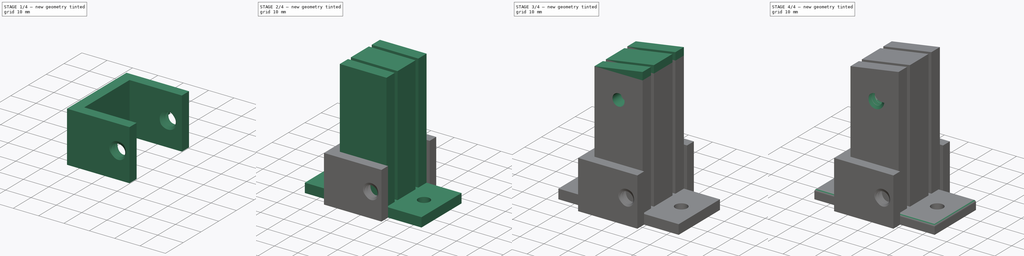
[diagram: build sequence overview — one tinted view per stage of 4, left to right]
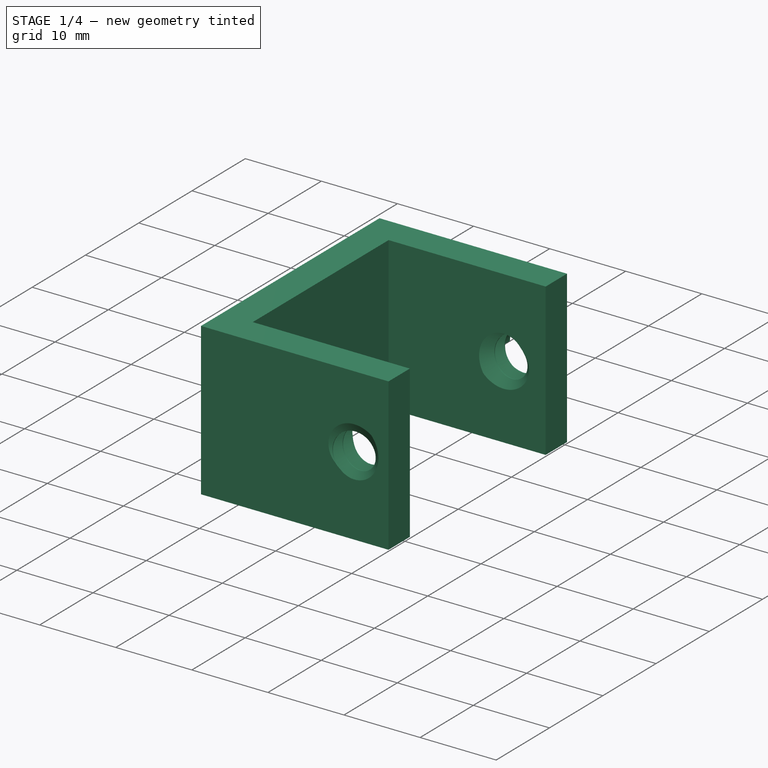
[diagram: stage 1 of 4 — iso view after this stage's code; geometry added in this stage tinted green]
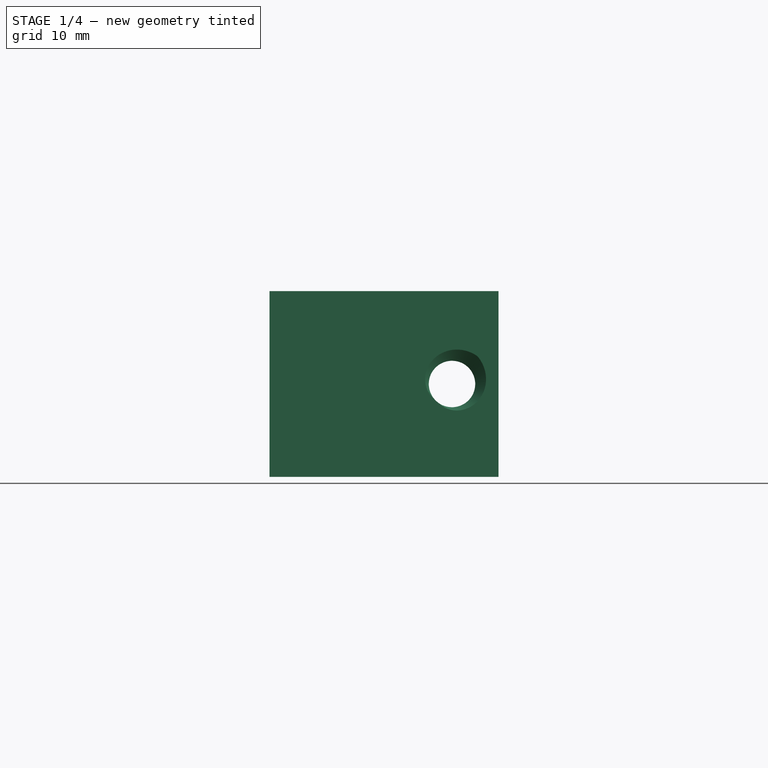
[diagram: stage 1 of 4 — front view after this stage's code; geometry added in this stage tinted green]
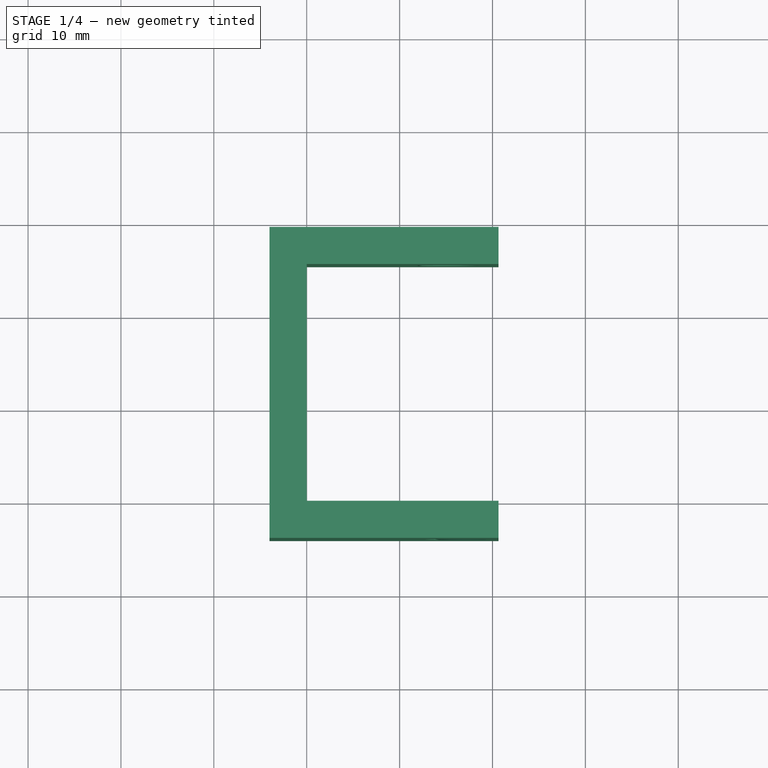
[diagram: stage 1 of 4 — top view after this stage's code; geometry added in this stage tinted green]
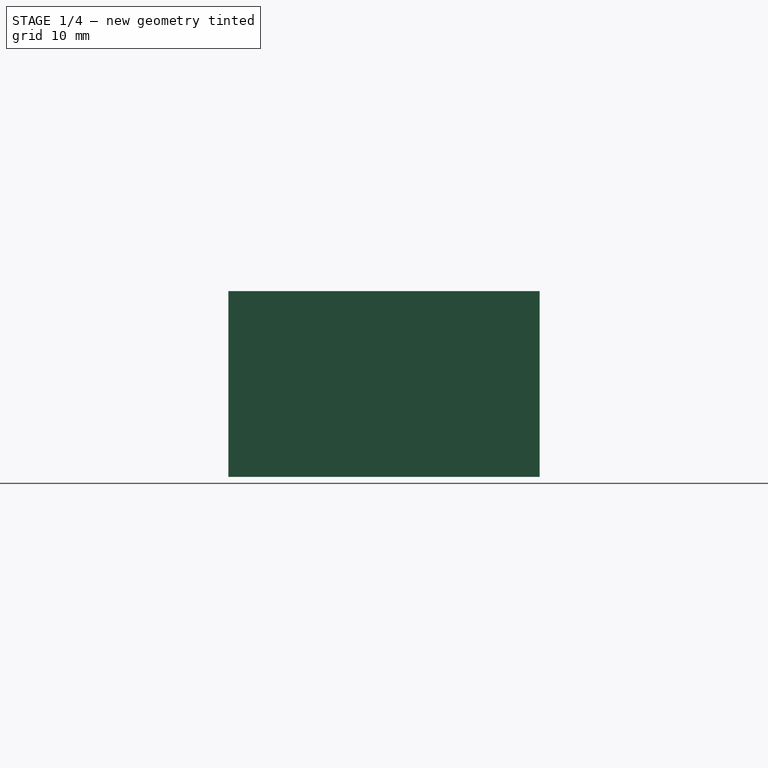
[diagram: stage 1 of 4 — right view after this stage's code; geometry added in this stage tinted green]
FCSTD DOCUMENT  (FreeCAD 0.20R29177 (Git))
Label: WashingRoomSupport
License: All rights reserved
LicenseURL: http://en.wikipedia.org/wiki/All_rights_reserved
objects: Sketcher::SketchObject×12, PartDesign::Pad×5, PartDesign::Pocket×4, PartDesign::SubtractiveHelix×3, PartDesign::Body×2, Spreadsheet::Sheet×1, PartDesign::Fillet×1
note: 40 computed .brp shape members not serialized (recipe doc carries the construction recipe); baked Part::Feature solids carry a one-line shape summary decoded from their .brp

FEATURE [PartDesign::Body] Body
  Group = -> [Sketch,Pad,Sketch001,Pad001,Sketch002,Pad002,Sketch003,Pad003,Sketch004,Pocket,Sketch005,Pocket001,Sketch006,Pocket002,SketchTemp_Sketch005_Edge1,SubtractiveHelix,SketchTemp_Sketch006_Edge1,SubtractiveHelix001,Fillet]
  Origin = -> Origin
  Tip = -> Fillet
FEATURE [Sketcher::SketchObject] Sketch007
  FullyConstrained = true
  MapMode = 5
  Support = -> [XY_Plane001]
  expr: Constraints[10] = Spreadsheet.EndCapHeight
  expr: Constraints[16] = Spreadsheet.wallThickness
  expr: Constraints[20] = Spreadsheet.wallThickness
  expr: Constraints[21] = Spreadsheet.wallThickness
  expr: Constraints[22] = Spreadsheet.totalPad + Spreadsheet.CapSpacingPad
  sketch-geometry (8):
    g0: LineSegment StartX=0 StartY=0 StartZ=0 EndX=0 EndY=25.5 EndZ=0
    g1: LineSegment StartX=0 StartY=25.5 StartZ=0 EndX=20.6421 EndY=25.5 EndZ=0
    g2: LineSegment StartX=20.6421 StartY=25.5 StartZ=0 EndX=20.6421 EndY=29.5 EndZ=0
    g3: LineSegment StartX=20.6421 StartY=29.5 StartZ=0 EndX=-4 EndY=29.5 EndZ=0
    g4: LineSegment StartX=-4 StartY=29.5 StartZ=0 EndX=-4 EndY=-4 EndZ=0
    g5: LineSegment StartX=0 StartY=0 StartZ=0 EndX=20.6421 EndY=0 EndZ=0
    g6: LineSegment StartX=20.6421 StartY=0 StartZ=0 EndX=20.6421 EndY=-4 EndZ=0
    g7: LineSegment StartX=-4 StartY=-4 StartZ=0 EndX=20.6421 EndY=-4 EndZ=0
  constraints (23):
    c: Coincident(g0,g-1)
    c: PointOnObject(g0,g-2)
    c: Coincident(g1,g0)
    c: Horizontal(g1)
    c: Coincident(g2,g1)
    c: Vertical(g2)
    c: Coincident(g3,g2)
    c: Horizontal(g3)
    c: Coincident(g4,g3)
    c: Vertical(g4)
    c: DistanceX(g1,g1) = 20.6421
    c: Coincident(g5,g0)
    c: PointOnObject(g5,g-1)
    c: Coincident(g6,g5)
    c: Vertical(g6)
    c: Equal(g1,g5)
    c: DistanceX(g3,g0) = 4
    c: Coincident(g7,g4)
    c: Coincident(g7,g6)
    c: Horizontal(g7)
    c: DistanceY(g4,g0) = 4
    c: DistanceY(g0,g3) = 4
    c: DistanceY(g0,g0) = 25.5
FEATURE [PartDesign::Pad] Pad004
  Direction = (0,0,1)
  Length = 20
  Length2 = 10
  Profile = -> Sketch007
  ReferenceAxis = -> Sketch007 [N_Axis]
  Type = 0
  expr: Length = Spreadsheet.length
FEATURE [Sketcher::SketchObject] Sketch008
  FullyConstrained = false
  MapMode = 5
  Placement = pos=(0,29.5,0) rot=(0,0.707107,0.707107;3.14159rad)
  Support = -> [Pad004]
  expr: Constraints[1] = Spreadsheet.length / 2
  expr: Constraints[3] = Spreadsheet.EndCapScrewToBottomDist
  expr: Constraints[4] = Spreadsheet.screwR
  sketch-geometry (2):
    g0: LineSegment StartX=-31.7206 StartY=10 StartZ=0 EndX=14.1242 EndY=10 EndZ=0
    g1: Circle CenterX=-15.6421 CenterY=10 CenterZ=0 NormalX=0 NormalY=0 NormalZ=1 AngleXU=0 Radius=2.5
  constraints (5):
    c: Horizontal(g0)
    c: DistanceY(g-1,g0) = 10
    c: PointOnObject(g1,g0)
    c: DistanceX(g1,g-1) = 15.6421
    c: Radius(g1) = 2.5
FEATURE [PartDesign::Pocket] Pocket003
  BaseFeature = -> Pad004
  Direction = (0,-1,2e-16)
  Length = 5
  Length2 = 5
  Profile = -> Sketch008
  ReferenceAxis = -> Sketch008 [N_Axis]
  Type = 1
FEATURE [Sketcher::SketchObject] SketchTemp_Sketch008_Edge1
  AttachmentOffset = pos=(-15.6421,10,0) rot=(1,0,0;1.5708rad)
  FullyConstrained = true
  MapMode = 5
  Placement = pos=(15.6421,29.5,10) rot=(0,1,0;3.14159rad)
  Support = -> [Pad004]
  sketch-geometry (3):
    g0: LineSegment StartX=2.5 StartY=0.9 StartZ=0 EndX=4.05885 EndY=0 EndZ=0
    g1: LineSegment StartX=4.05885 StartY=0 StartZ=0 EndX=2.5 EndY=-0.9 EndZ=0
    g2: LineSegment StartX=2.5 StartY=-0.9 StartZ=0 EndX=2.5 EndY=0.9 EndZ=0
  constraints (9):
    c: Equal(g2,g0)
    c: Equal(g2,g1)
    c: Distance(g2) = 1.8
    c: Coincident(g0,g1)
    c: Coincident(g1,g2)
    c: Coincident(g2,g0)
    c: Parallel(g2,g-2)
    c: PointOnObject(g0,g-1)
    c: DistanceX(g-1,g0) = 2.5
FEATURE [PartDesign::SubtractiveHelix] SubtractiveHelix002
  Angle = 0
  Axis = (0,1,-2e-16)
  Base = (15.6421,29.5,10)
  BaseFeature = -> Pocket003
  Growth = 0
  HasBeenEdited = false
  Height = 35
  LeftHanded = false
  Mode = 0
  Outside = false
  Pitch = 1.9
  Profile = -> SketchTemp_Sketch008_Edge1
  ReferenceAxis = -> SketchTemp_Sketch008_Edge1 [V_Axis]
  Reversed = true
  Turns = 18.4211
FEATURE [PartDesign::Body] Body001  label="Body001EndCap"
  Group = -> [Sketch007,Pad004,Sketch008,Pocket003,SketchTemp_Sketch008_Edge1,SubtractiveHelix002]
  Origin = -> Origin001
  Tip = -> SubtractiveHelix002
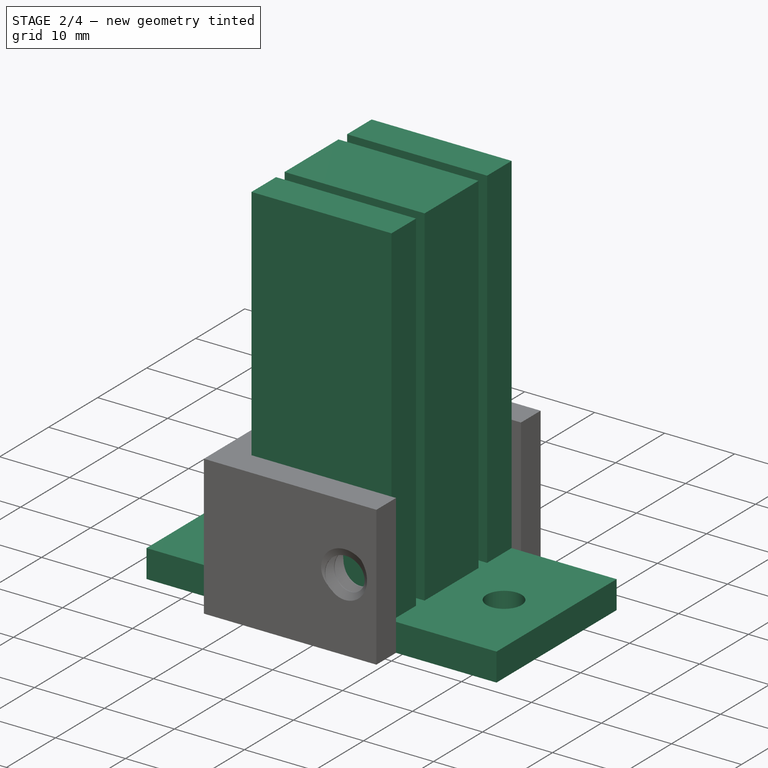
[diagram: stage 2 of 4 — iso view after this stage's code; geometry added in this stage tinted green]
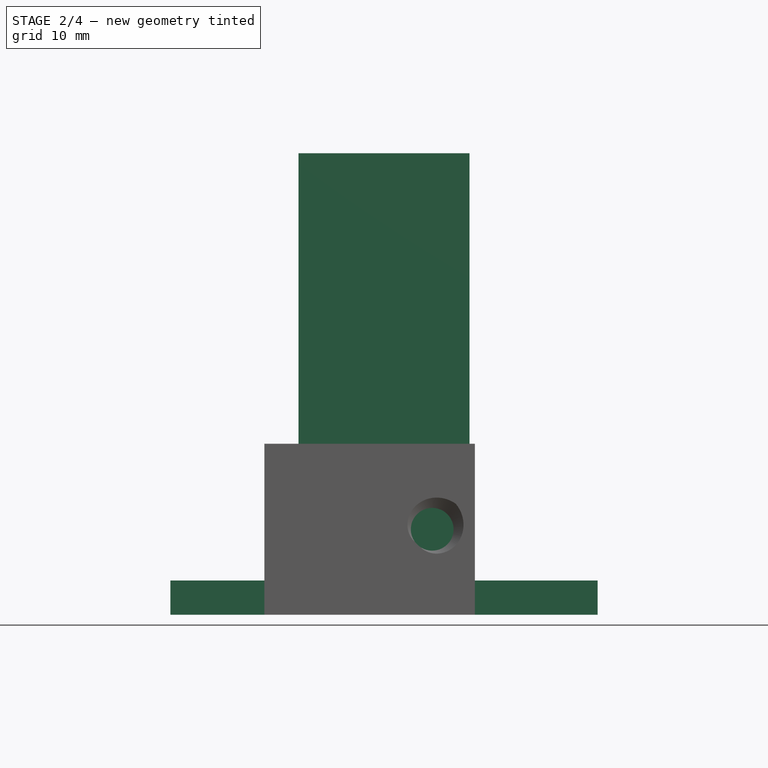
[diagram: stage 2 of 4 — front view after this stage's code; geometry added in this stage tinted green]
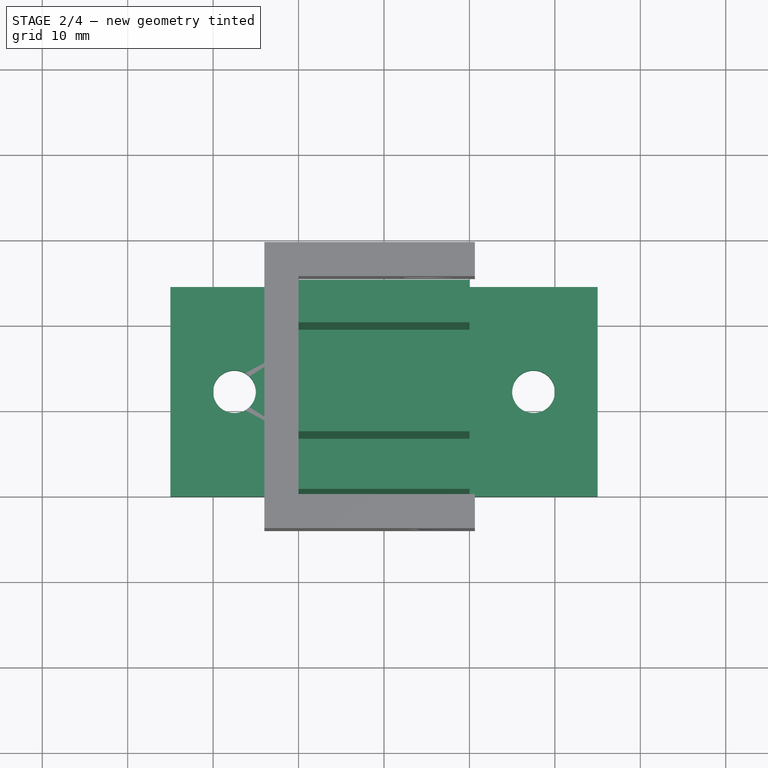
[diagram: stage 2 of 4 — top view after this stage's code; geometry added in this stage tinted green]
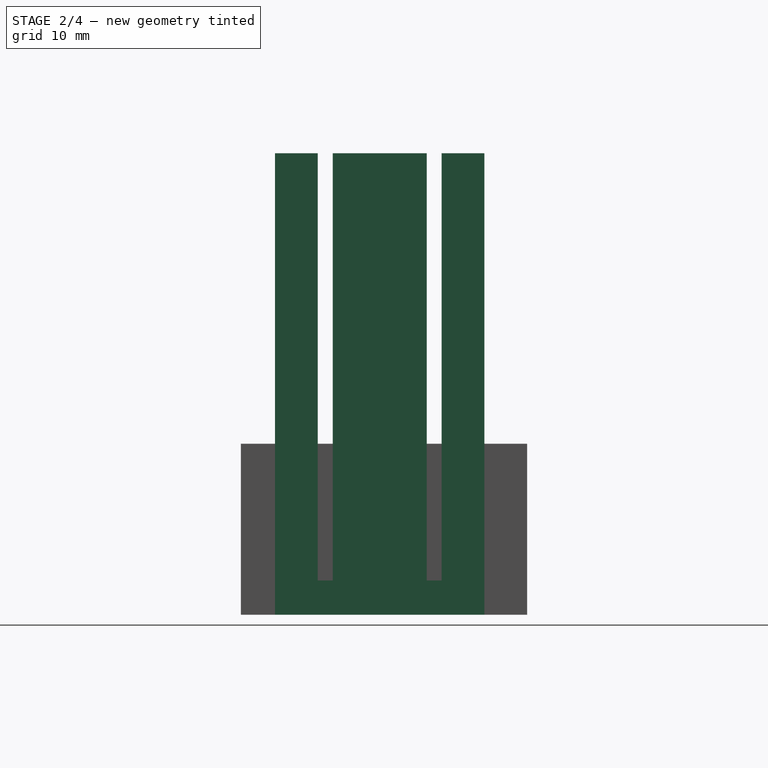
[diagram: stage 2 of 4 — right view after this stage's code; geometry added in this stage tinted green]
FEATURE [Sketcher::SketchObject] Sketch
  FullyConstrained = true
  MapMode = 5
  Support = -> [XY_Plane]
  expr: Constraints[10] = Spreadsheet.length
  expr: Constraints[9] = Spreadsheet.totalPad
  sketch-geometry (4):
    g0: LineSegment StartX=0 StartY=0 StartZ=0 EndX=20 EndY=0 EndZ=0
    g1: LineSegment StartX=20 StartY=0 StartZ=0 EndX=20 EndY=24.5 EndZ=0
    g2: LineSegment StartX=20 StartY=24.5 StartZ=0 EndX=0 EndY=24.5 EndZ=0
    g3: LineSegment StartX=0 StartY=24.5 StartZ=0 EndX=0 EndY=0 EndZ=0
  constraints (11):
    c: Coincident(g0,g1)
    c: Coincident(g1,g2)
    c: Coincident(g2,g3)
    c: Coincident(g3,g0)
    c: Horizontal(g0)
    c: Horizontal(g2)
    c: Vertical(g1)
    c: Vertical(g3)
    c: Coincident(g0,g-1)
    c: DistanceY(g1,g1) = 24.5
    c: DistanceX(g2,g2) = 20
FEATURE [PartDesign::Pad] Pad
  Direction = (0,0,1)
  Length = 4
  Length2 = 10
  Profile = -> Sketch
  ReferenceAxis = -> Sketch [N_Axis]
  Type = 0
  expr: Length = Spreadsheet.screwPadThickness
FEATURE [Sketcher::SketchObject] Sketch001
  ExternalGeometry = -> [Pad]
  FullyConstrained = true
  MapMode = 5
  Support = -> [XY_Plane]
  expr: Constraints[30] = Spreadsheet.outerPad
  expr: Constraints[31] = Spreadsheet.passSpacing
  expr: Constraints[32] = Spreadsheet.inner
  expr: Constraints[33] = Spreadsheet.passSpacing
  sketch-geometry (12):
    g0: LineSegment StartX=0 StartY=17.75 StartZ=0 EndX=20 EndY=17.75 EndZ=0
    g1: LineSegment StartX=20 StartY=17.75 StartZ=0 EndX=20 EndY=6.75 EndZ=0
    g2: LineSegment StartX=20 StartY=6.75 StartZ=0 EndX=0 EndY=6.75 EndZ=0
    g3: LineSegment StartX=0 StartY=6.75 StartZ=0 EndX=0 EndY=17.75 EndZ=0
    g4: LineSegment StartX=0 StartY=24.5 StartZ=0 EndX=20 EndY=24.5 EndZ=0
    g5: LineSegment StartX=20 StartY=24.5 StartZ=0 EndX=20 EndY=19.5 EndZ=0
    g6: LineSegment StartX=20 StartY=19.5 StartZ=0 EndX=0 EndY=19.5 EndZ=0
    g7: LineSegment StartX=0 StartY=19.5 StartZ=0 EndX=0 EndY=24.5 EndZ=0
    g8: LineSegment StartX=0 StartY=0 StartZ=0 EndX=20 EndY=0 EndZ=0
    g9: LineSegment StartX=20 StartY=0 StartZ=0 EndX=20 EndY=5 EndZ=0
    g10: LineSegment StartX=20 StartY=5 StartZ=0 EndX=0 EndY=5 EndZ=0
    g11: LineSegment StartX=0 StartY=5 StartZ=0 EndX=0 EndY=0 EndZ=0
  constraints (34):
    c: Coincident(g0,g1)
    c: Coincident(g1,g2)
    c: Coincident(g2,g3)
    c: Coincident(g3,g0)
    c: Horizontal(g0)
    c: Horizontal(g2)
    c: Vertical(g1)
    c: Vertical(g3)
    c: PointOnObject(g0,g-4)
    c: PointOnObject(g1,g-5)
    c: Coincident(g4,g5)
    c: Coincident(g5,g6)
    c: Coincident(g6,g7)
    c: Coincident(g7,g4)
    c: Horizontal(g4)
    c: Horizontal(g6)
    c: Vertical(g5)
    c: Vertical(g7)
    c: Coincident(g4,g-4)
    c: PointOnObject(g5,g-5)
    c: Coincident(g8,g9)
    c: Coincident(g9,g10)
    c: Coincident(g10,g11)
    c: Coincident(g11,g8)
    c: Horizontal(g8)
    c: Horizontal(g10)
    c: Vertical(g9)
    c: Vertical(g11)
    c: Coincident(g8,g-4)
    c: PointOnObject(g9,g-5)
    c: DistanceY(g11,g11) = 5
    c: DistanceY(g10,g2) = 1.75
    c: DistanceY(g3,g3) = 11
    c: DistanceY(g0,g6) = 1.75
FEATURE [Spreadsheet::Sheet] Spreadsheet
  cells = A2=inner; B2(inner)=11; A3=outer; B3(outer)=14.5; A4=length; B4(length)=20; A5=outerPad; B5(outerPad)=5; A6=padHeight; B6(padHeight)=50; A7=screwR; B7(screwR)=2.5; A8=screwPadThickness; B8(screwPadThickness)=4; A9=outerPadWithScrew; B9(outerPadWithScrew)=5; A10=totalPad; B10(totalPad)==B3 + B5 + B9; C10=B3 + B5 + B9, outer+outerPad_outerPadWithScrew; A11=passSpacing; B11(passSpacing)==(B3 - B2) / 2; A12=fasteningScrewY; B12(fasteningScrewY)==B6 - B16; C12=B6-B16, padHeight- fastenScrewToTopDist; A13=screwSupportWidth; B13(screwSupportWidth)=15; A14=screwHelixPos; B14(screwHelixPos)==B12 + B8; C14=B12 + B8, screwPadThicknews+fastenScrewY; A15=threadedScrewHoleR; B15(threadedScrewHoleR)=2.5; A16=fastenScrewToTopDist; B16(fastenScrewToTopDist)=10; A18=EndCapScrewToBottomDistNoPad; B18==sqrt(B16 * B16 + B4 * B4 / 4); C18=sqrt((length/2)^2+fastenScrewTopTopDist^2); A19=EndCapScrewPad; B19=1.5; A20=EndCapScrewToBottomDist; B20(EndCapScrewToBottomDist)==B18 + B19; A21=EndCapHeight; B21(EndCapHeight)==B20 + 5; A22=wallThickness; B22(wallThickness)=4; C22=set to 2 for now; A23=CapSpacingPad; B23(CapSpacingPad)=1; D23=makeScrewHole('Sketch008.Edge2', 'Body001')
FEATURE [PartDesign::Pad] Pad001
  BaseFeature = -> Pad
  Direction = (0,0,1)
  Length = 54
  Length2 = 10
  Profile = -> Sketch001
  ReferenceAxis = -> Sketch001 [N_Axis]
  Type = 0
  expr: Length = Spreadsheet.padHeight + 4
FEATURE [Sketcher::SketchObject] Sketch002
  FullyConstrained = false
  MapMode = 5
  Support = -> [XY_Plane]
  expr: Constraints[10] = Spreadsheet.length
  expr: Constraints[11] = Spreadsheet.screwSupportWidth
  expr: Constraints[34] = Spreadsheet.screwR
  expr: Constraints[9] = Spreadsheet.totalPad
  sketch-geometry (13):
    g0: LineSegment StartX=20 StartY=0 StartZ=0 EndX=35 EndY=0 EndZ=0
    g1: LineSegment StartX=35 StartY=0 StartZ=0 EndX=35 EndY=24.5 EndZ=0
    g2: LineSegment StartX=35 StartY=24.5 StartZ=0 EndX=20 EndY=24.5 EndZ=0
    g3: LineSegment StartX=20 StartY=24.5 StartZ=0 EndX=20 EndY=0 EndZ=0
    g4: LineSegment StartX=0 StartY=0 StartZ=0 EndX=-15 EndY=0 EndZ=0
    g5: LineSegment StartX=-15 StartY=0 StartZ=0 EndX=-15 EndY=24.5 EndZ=0
    g6: LineSegment StartX=-15 StartY=24.5 StartZ=0 EndX=0 EndY=24.5 EndZ=0
    g7: LineSegment StartX=0 StartY=24.5 StartZ=0 EndX=0 EndY=0 EndZ=0
    g8: Circle CenterX=-7.5 CenterY=12.25 CenterZ=0 NormalX=0 NormalY=0 NormalZ=1 AngleXU=0 Radius=2.5
    g9: Circle CenterX=27.5 CenterY=12.25 CenterZ=0 NormalX=0 NormalY=0 NormalZ=1 AngleXU=0 Radius=2.5
    g10: LineSegment StartX=27.5 StartY=24.5 StartZ=0 EndX=27.5 EndY=-2.08774 EndZ=0
    g11: LineSegment StartX=-7.5 StartY=24.5 StartZ=0 EndX=-7.5 EndY=-2.99237 EndZ=0
    g12: LineSegment StartX=-14.9256 StartY=12.25 StartZ=0 EndX=35 EndY=12.25 EndZ=0
  constraints (35):
    c: Coincident(g0,g1)
    c: Coincident(g1,g2)
    c: Coincident(g2,g3)
    c: Coincident(g3,g0)
    c: Horizontal(g0)
    c: Horizontal(g2)
    c: Vertical(g1)
    c: Vertical(g3)
    c: PointOnObject(g0,g-1)
    c: DistanceY(g1,g1) = 24.5
    c: DistanceX(g-1,g2) = 20
    c: DistanceX(g2,g2) = 15
    c: Coincident(g4,g5)
    c: Coincident(g5,g6)
    c: Coincident(g6,g7)
    c: Coincident(g7,g4)
    c: Horizontal(g4)
    c: Horizontal(g6)
    c: Vertical(g5)
    c: Vertical(g7)
    c: Coincident(g4,g-1)
    c: Equal(g1,g5)
    c: Equal(g6,g2)
    c: Vertical(g10)
    c: Vertical(g11)
    c: Horizontal(g12)
    c: Symmetric(g1,g0,g12)
    c: Symmetric(g1,g2,g10)
    c: Symmetric(g5,g6,g11)
    c: PointOnObject(g9,g12)
    c: PointOnObject(g9,g10)
    c: PointOnObject(g8,g12)
    c: PointOnObject(g8,g11)
    c: Equal(g8,g9)
    c: Radius(g8) = 2.5
FEATURE [PartDesign::Pad] Pad002
  BaseFeature = -> Pad001
  Direction = (0,0,1)
  Length = 4
  Length2 = 10
  Profile = -> Sketch002
  ReferenceAxis = -> Sketch002 [N_Axis]
  Type = 0
  expr: Length = Spreadsheet.screwPadThickness
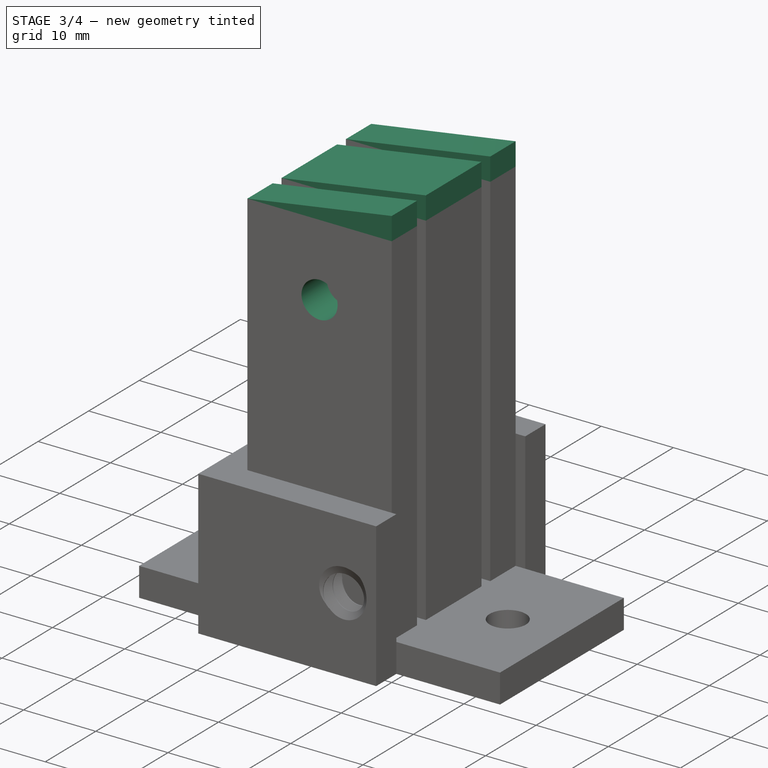
[diagram: stage 3 of 4 — iso view after this stage's code; geometry added in this stage tinted green]
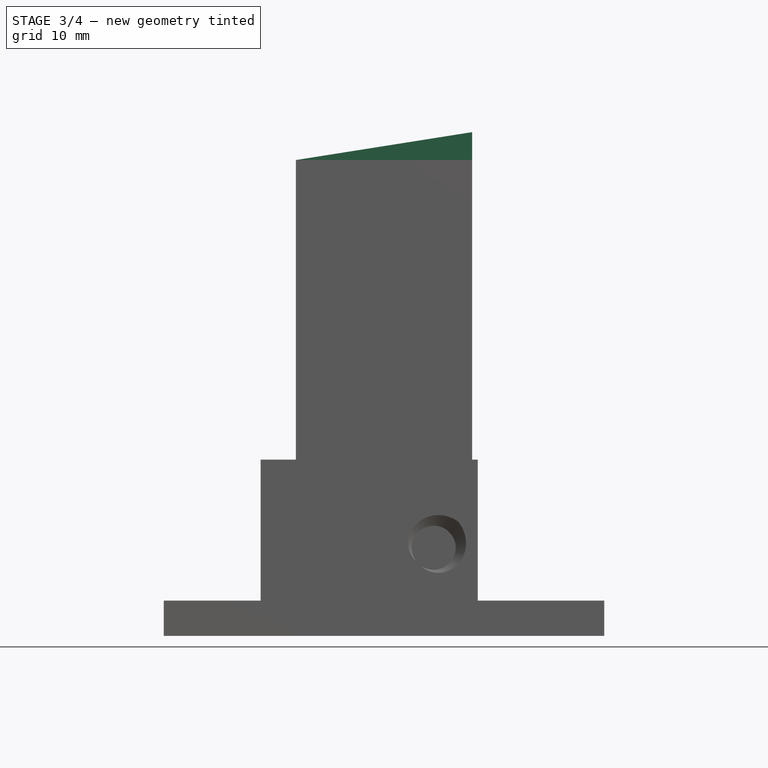
[diagram: stage 3 of 4 — front view after this stage's code; geometry added in this stage tinted green]
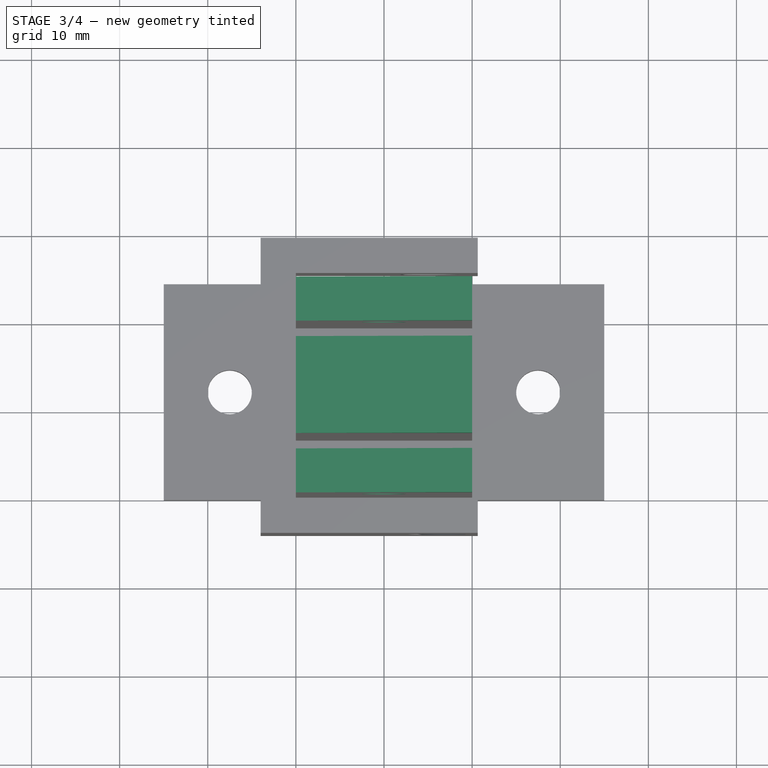
[diagram: stage 3 of 4 — top view after this stage's code; geometry added in this stage tinted green]
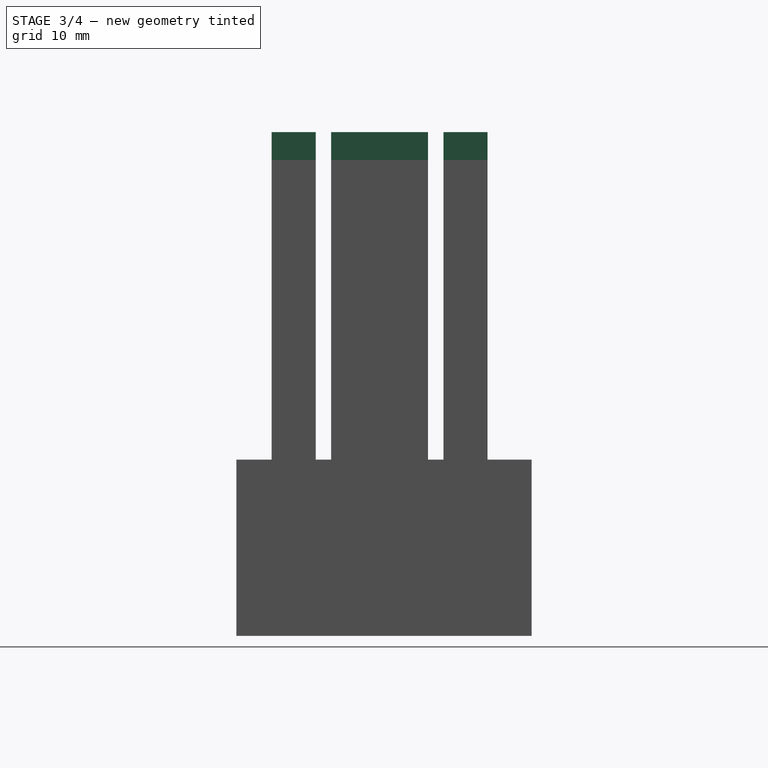
[diagram: stage 3 of 4 — right view after this stage's code; geometry added in this stage tinted green]
FEATURE [Sketcher::SketchObject] Sketch003
  ExternalGeometry = -> [Pad002]
  FullyConstrained = true
  MapMode = 5
  Placement = pos=(0,0,0) rot=(1,0,0;1.5708rad)
  Support = -> [XZ_Plane]
  sketch-geometry (3):
    g0: LineSegment StartX=0 StartY=54 StartZ=0 EndX=20 EndY=57.1677 EndZ=0
    g1: LineSegment StartX=20 StartY=54 StartZ=0 EndX=20 EndY=57.1677 EndZ=0
    g2: LineSegment StartX=20 StartY=54 StartZ=0 EndX=0 EndY=54 EndZ=0
  constraints (7):
    c: Coincident(g0,g-3)
    c: Angle(g-3,g0) = 0.15708
    c: Coincident(g1,g-4)
    c: Coincident(g1,g0)
    c: Vertical(g1)
    c: Coincident(g2,g1)
    c: Coincident(g2,g0)
FEATURE [PartDesign::Pad] Pad003
  BaseFeature = -> Pad002
  Direction = (0,-1,-2e-16)
  Length = 24.5
  Length2 = 10
  Profile = -> Sketch003
  ReferenceAxis = -> Sketch003 [N_Axis]
  Reversed = true
  Type = 0
  expr: Length = Spreadsheet.totalPad
FEATURE [Sketcher::SketchObject] Sketch004
  ExternalGeometry = -> [Pad003]
  FullyConstrained = true
  MapMode = 5
  Placement = pos=(0,0,4) rot=(0,0,1;0rad)
  Support = -> [Pad003]
  sketch-geometry (8):
    g0: LineSegment StartX=0 StartY=19.5 StartZ=0 EndX=20 EndY=19.5 EndZ=0
    g1: LineSegment StartX=20 StartY=19.5 StartZ=0 EndX=20 EndY=17.75 EndZ=0
    g2: LineSegment StartX=20 StartY=17.75 StartZ=0 EndX=0 EndY=17.75 EndZ=0
    g3: LineSegment StartX=0 StartY=17.75 StartZ=0 EndX=0 EndY=19.5 EndZ=0
    g4: LineSegment StartX=0 StartY=6.75 StartZ=0 EndX=20 EndY=6.75 EndZ=0
    g5: LineSegment StartX=20 StartY=6.75 StartZ=0 EndX=20 EndY=5 EndZ=0
    g6: LineSegment StartX=20 StartY=5 StartZ=0 EndX=0 EndY=5 EndZ=0
    g7: LineSegment StartX=0 StartY=5 StartZ=0 EndX=0 EndY=6.75 EndZ=0
  constraints (20):
    c: Coincident(g0,g1)
    c: Coincident(g1,g2)
    c: Coincident(g2,g3)
    c: Coincident(g3,g0)
    c: Horizontal(g0)
    c: Horizontal(g2)
    c: Vertical(g1)
    c: Vertical(g3)
    c: Coincident(g0,g-8)
    c: Coincident(g1,g-7)
    c: Coincident(g4,g5)
    c: Coincident(g5,g6)
    c: Coincident(g6,g7)
    c: Coincident(g7,g4)
    c: Horizontal(g4)
    c: Horizontal(g6)
    c: Vertical(g5)
    c: Vertical(g7)
    c: Coincident(g4,g-5)
    c: Coincident(g5,g-6)
FEATURE [PartDesign::Pocket] Pocket
  BaseFeature = -> Pad003
  Direction = (0,0,-1)
  Length = 5
  Length2 = 5
  Profile = -> Sketch004
  ReferenceAxis = -> Sketch004 [N_Axis]
  Reversed = true
  Type = 1
FEATURE [Sketcher::SketchObject] Sketch005  label="Sketch005SideScrewHole"
  ExternalGeometry = -> [Pocket]
  FullyConstrained = false
  MapMode = 5
  Placement = pos=(0,24.5,0) rot=(0,0.707107,0.707107;3.14159rad)
  Support = -> [Pocket]
  expr: Constraints[3] = Spreadsheet.fasteningScrewY
  expr: Constraints[4] = Spreadsheet.threadedScrewHoleR
  sketch-geometry (2):
    g0: LineSegment StartX=-10 StartY=49.8026 StartZ=0 EndX=-10 EndY=4 EndZ=0
    g1: Circle CenterX=-10 CenterY=44 CenterZ=0 NormalX=0 NormalY=0 NormalZ=1 AngleXU=0 Radius=2.5
  constraints (5):
    c: Vertical(g0)
    c: Symmetric(g-3,g-3,g0)
    c: PointOnObject(g1,g0)
    c: DistanceY(g-3,g1) = 40
    c: Radius(g1) = 2.5
FEATURE [PartDesign::Pocket] Pocket001
  BaseFeature = -> Pocket
  Direction = (0,-1,2e-16)
  Length = 5
  Length2 = 5
  Profile = -> Sketch005
  ReferenceAxis = -> Sketch005 [N_Axis]
  Type = 2
FEATURE [Sketcher::SketchObject] Sketch006  label="Sketch006SideScrewHole"
  ExternalGeometry = -> [Pocket001]
  FullyConstrained = true
  MapMode = 5
  Placement = pos=(0,0,0) rot=(1,0,0;1.5708rad)
  Support = -> [Pocket001]
  expr: Constraints[2] = Spreadsheet.fasteningScrewY
  expr: Constraints[4] = Spreadsheet.threadedScrewHoleR
  sketch-geometry (2):
    g0: LineSegment StartX=10 StartY=4 StartZ=0 EndX=10 EndY=44 EndZ=0
    g1: Circle CenterX=10 CenterY=44 CenterZ=0 NormalX=0 NormalY=0 NormalZ=1 AngleXU=0 Radius=2.5
  constraints (5):
    c: Vertical(g0)
    c: Symmetric(g-3,g-3,g0)
    c: DistanceY(g0,g0) = 40
    c: Coincident(g1,g0)
    c: Radius(g1) = 2.5
FEATURE [PartDesign::Pocket] Pocket002
  BaseFeature = -> Pocket001
  Direction = (0,1,-2e-16)
  Length = 5
  Length2 = 5
  Profile = -> Sketch006
  ReferenceAxis = -> Sketch006 [N_Axis]
  Type = 2
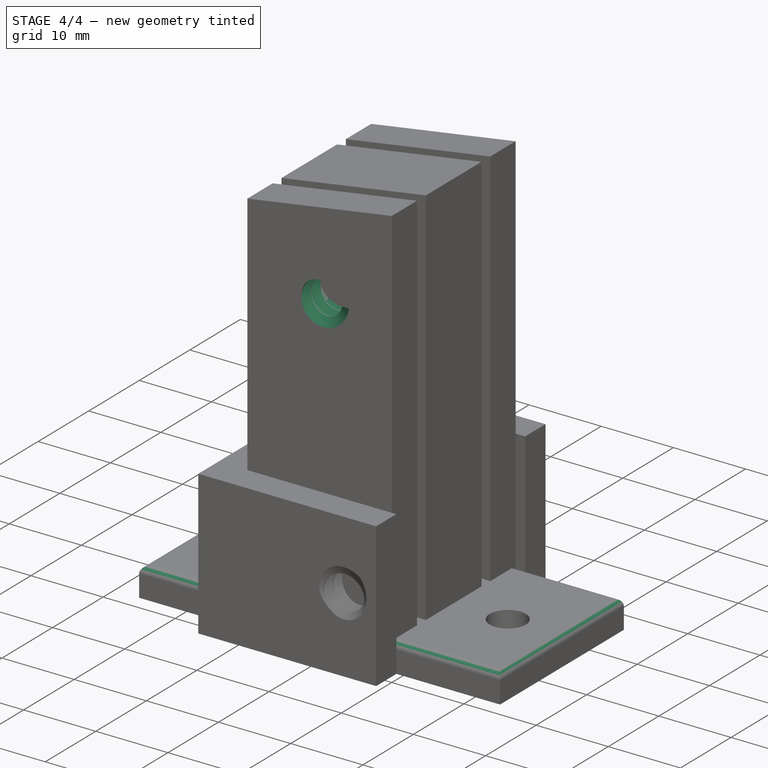
[diagram: stage 4 of 4 — iso view after this stage's code; geometry added in this stage tinted green]
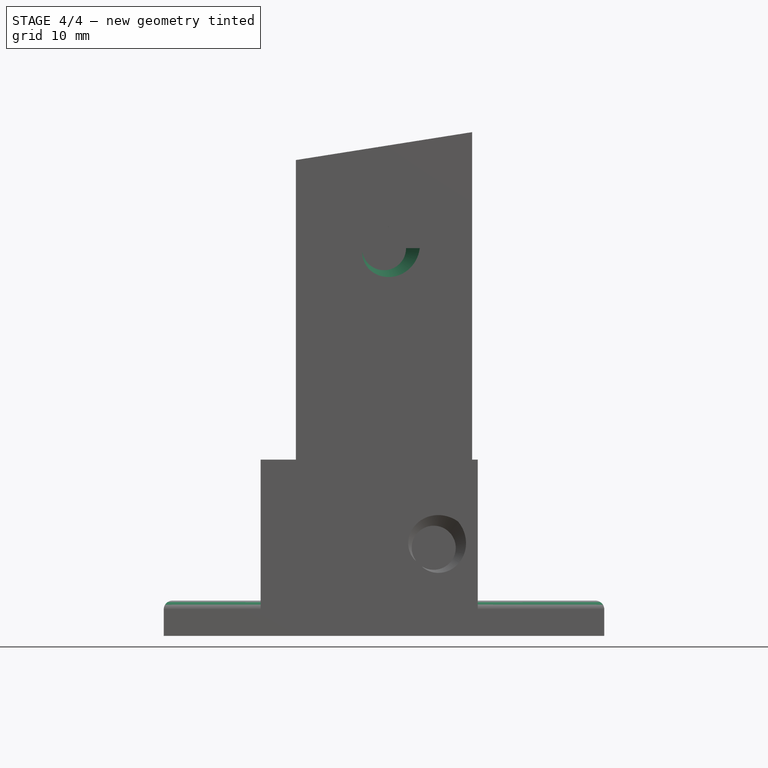
[diagram: stage 4 of 4 — front view after this stage's code; geometry added in this stage tinted green]
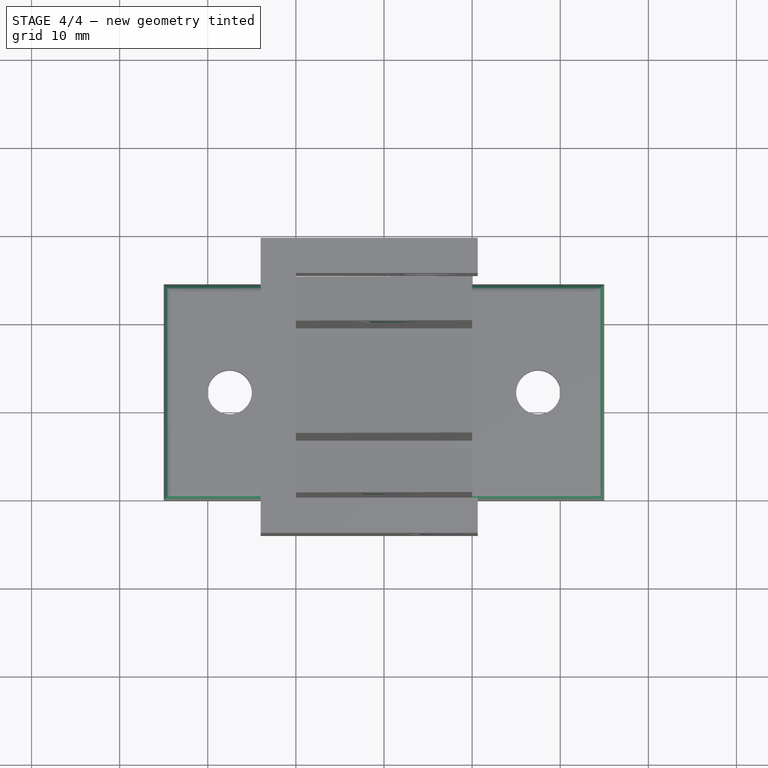
[diagram: stage 4 of 4 — top view after this stage's code; geometry added in this stage tinted green]
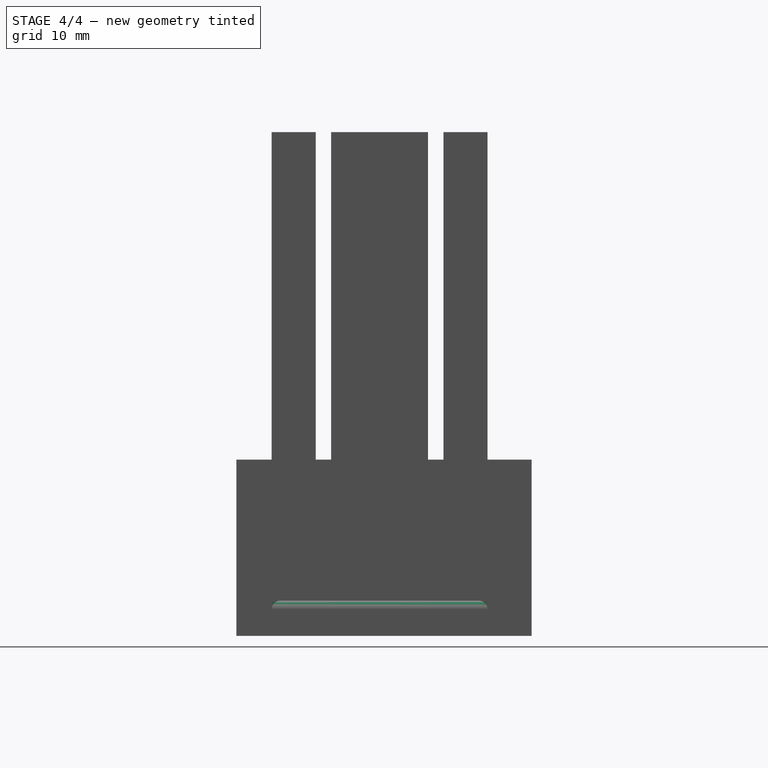
[diagram: stage 4 of 4 — right view after this stage's code; geometry added in this stage tinted green]
FEATURE [Sketcher::SketchObject] SketchTemp_Sketch005_Edge1
  AttachmentOffset = pos=(-10,44,0) rot=(1,0,0;1.5708rad)
  FullyConstrained = true
  MapMode = 5
  Placement = pos=(10,24.5,44) rot=(0,1,0;3.14159rad)
  Support = -> [Pocket]
  expr: .AttachmentOffset.Base.y = Spreadsheet.screwHelixPos
  sketch-geometry (3):
    g0: LineSegment StartX=2.5 StartY=0.9 StartZ=0 EndX=4.05885 EndY=0 EndZ=0
    g1: LineSegment StartX=4.05885 StartY=0 StartZ=0 EndX=2.5 EndY=-0.9 EndZ=0
    g2: LineSegment StartX=2.5 StartY=-0.9 StartZ=0 EndX=2.5 EndY=0.9 EndZ=0
  constraints (9):
    c: Equal(g2,g0)
    c: Equal(g2,g1)
    c: Distance(g2) = 1.8
    c: Coincident(g0,g1)
    c: Coincident(g1,g2)
    c: Coincident(g2,g0)
    c: Parallel(g2,g-2)
    c: PointOnObject(g0,g-1)
    c: DistanceX(g-1,g0) = 2.5
FEATURE [PartDesign::SubtractiveHelix] SubtractiveHelix
  Angle = 0
  Axis = (0,1,-2e-16)
  Base = (10,24.5,44)
  BaseFeature = -> Pocket002
  Growth = 0
  HasBeenEdited = false
  Height = 6
  LeftHanded = false
  Mode = 0
  Outside = false
  Pitch = 1.9
  Profile = -> SketchTemp_Sketch005_Edge1
  ReferenceAxis = -> SketchTemp_Sketch005_Edge1 [V_Axis]
  Reversed = true
  Turns = 3.15789
FEATURE [Sketcher::SketchObject] SketchTemp_Sketch006_Edge1
  AttachmentOffset = pos=(10,44,0) rot=(1,0,0;1.5708rad)
  FullyConstrained = true
  MapMode = 5
  Placement = pos=(10,9.8e-15,44) rot=(1,0,0;3.14159rad)
  Support = -> [Pocket001]
  expr: .AttachmentOffset.Base.y = Spreadsheet.screwHelixPos
  sketch-geometry (3):
    g0: LineSegment StartX=2.5 StartY=0.9 StartZ=0 EndX=4.05885 EndY=0 EndZ=0
    g1: LineSegment StartX=4.05885 StartY=0 StartZ=0 EndX=2.5 EndY=-0.9 EndZ=0
    g2: LineSegment StartX=2.5 StartY=-0.9 StartZ=0 EndX=2.5 EndY=0.9 EndZ=0
  constraints (9):
    c: Equal(g2,g0)
    c: Equal(g2,g1)
    c: Distance(g2) = 1.8
    c: Coincident(g0,g1)
    c: Coincident(g1,g2)
    c: Coincident(g2,g0)
    c: Parallel(g2,g-2)
    c: PointOnObject(g0,g-1)
    c: DistanceX(g-1,g0) = 2.5
FEATURE [PartDesign::SubtractiveHelix] SubtractiveHelix001
  Angle = 0
  Axis = (0,-1,2e-16)
  Base = (10,9.8e-15,44)
  BaseFeature = -> SubtractiveHelix
  Growth = 0
  HasBeenEdited = false
  Height = 6
  LeftHanded = false
  Mode = 0
  Outside = false
  Pitch = 1.9
  Profile = -> SketchTemp_Sketch006_Edge1
  ReferenceAxis = -> SketchTemp_Sketch006_Edge1 [V_Axis]
  Reversed = true
  Turns = 3.15789
FEATURE [PartDesign::Fillet] Fillet
  Base = -> SubtractiveHelix001 [Edge10,Edge38,Edge45,Edge29,Edge22,Edge7]
  BaseFeature = -> SubtractiveHelix001
  Radius = 1
  SupportTransform = false
  UseAllEdges = false
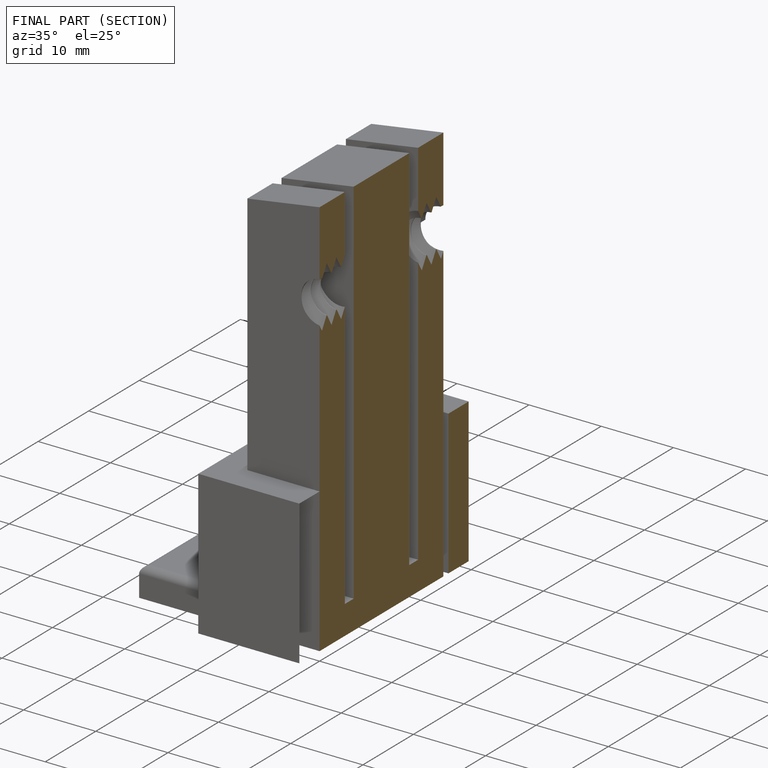
[diagram: finished part — half-section view (interior)]
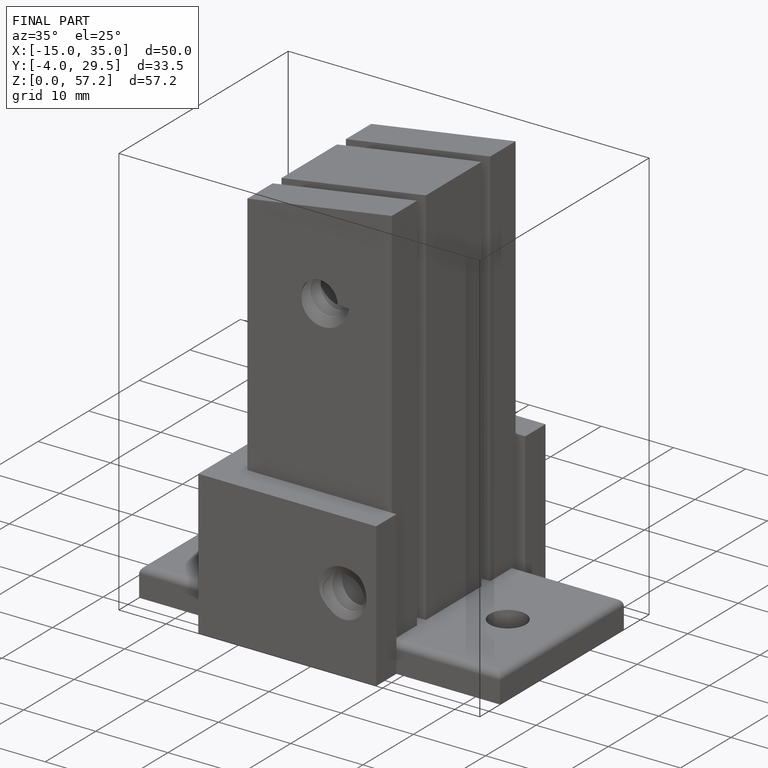
[diagram: finished part — iso view with bounding-box wireframe]
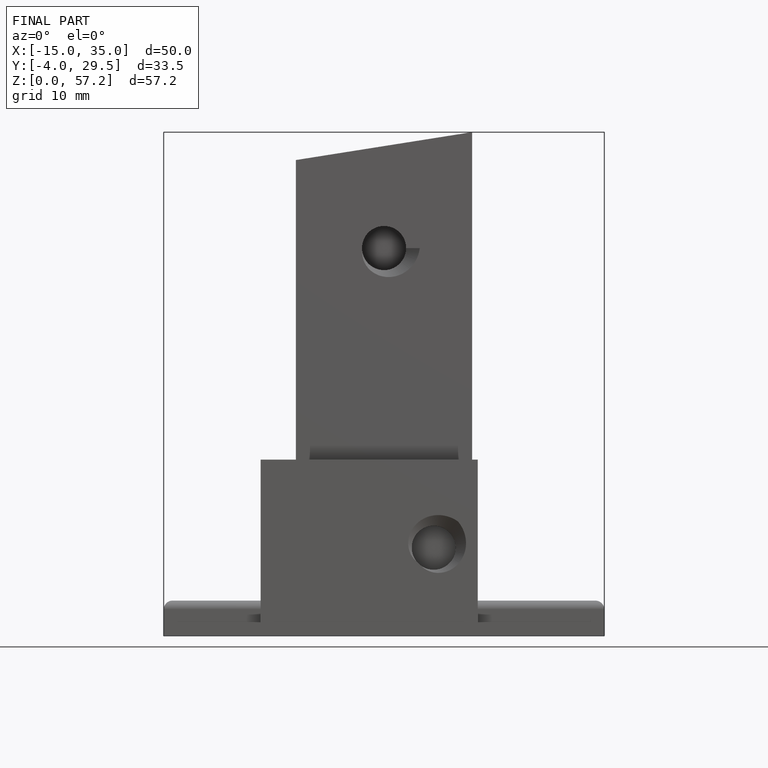
[diagram: finished part — front view with bounding-box wireframe]
